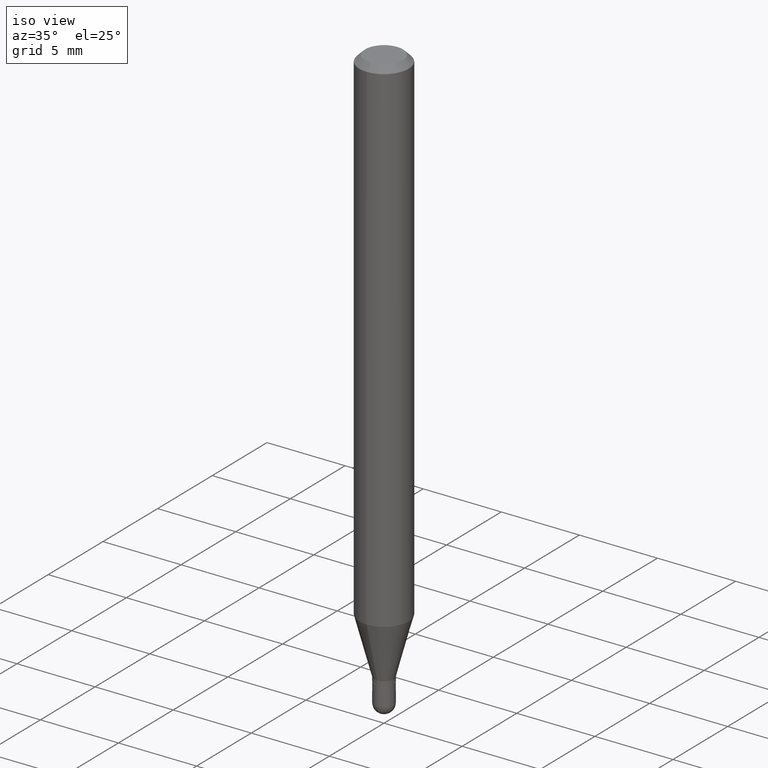
[diagram: clean part render]
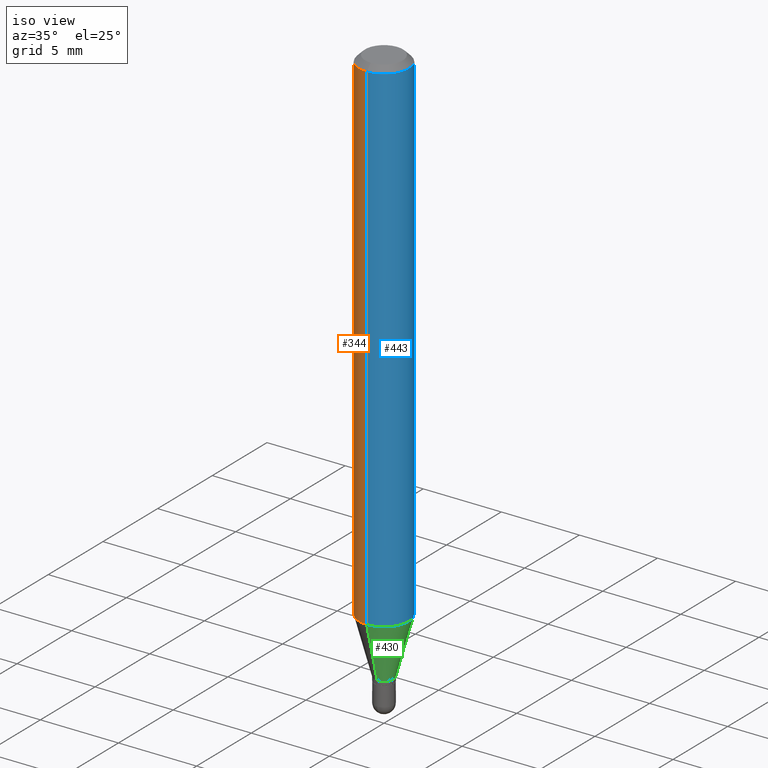
[diagram: same view with three faces highlighted in distinct colors, each labeled with its STEP entity id]
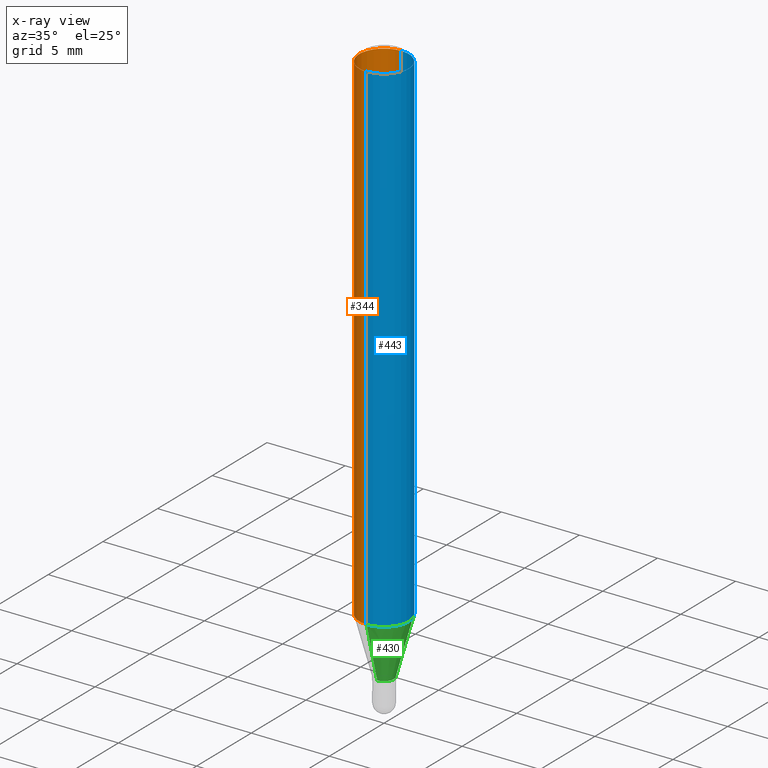
[diagram: x-ray of the same camera — body ghosted, the three highlighted faces saturated]
A machine part, iso view with three faces highlighted in distinct colors.
The next image is the same camera in x-ray (body ghosted, the three faces saturated) — at least one of them is partly hidden behind the body in this view.
Their STEP definitions:

[orange] entity #344 — the highlighted cylindrical surface (edge-blend (fillet) strip) has radius 1.5875 mm, axis along (-0, 0, 1).
#9 = CARTESIAN_POINT ( 'NONE',  ( -4.364351673553912750E-16, -0.06250000000000005551, -0.01499999999999979128 ) ) ;
#13 = CARTESIAN_POINT ( 'NONE',  ( 0.000000000000000000, 0.000000000000000000, 0.000000000000000000 ) ) ;
#24 = EDGE_LOOP ( 'NONE', ( #45, #44, #126, #42 ) ) ;
#27 = AXIS2_PLACEMENT_3D ( 'NONE', #13, #93, #394 ) ;
#33 = CARTESIAN_POINT ( 'NONE',  ( -4.364351673553916201E-16, -0.06250000000000000000, 2.182189338538161104E-16 ) ) ;
#42 = ORIENTED_EDGE ( 'NONE', *, *, #469, .F. ) ;
#44 = ORIENTED_EDGE ( 'NONE', *, *, #94, .T. ) ;
#45 = ORIENTED_EDGE ( 'NONE', *, *, #325, .F. ) ;
#49 = AXIS2_PLACEMENT_3D ( 'NONE', #340, #145, #421 ) ;
#53 = CYLINDRICAL_SURFACE ( 'NONE', #27, 0.06250000000000000000 ) ;
#61 = CARTESIAN_POINT ( 'NONE',  ( 3.668180581527025372E-31, -5.237254412491589410E-17, -0.01500000000000000812 ) ) ;
#85 = CARTESIAN_POINT ( 'NONE',  ( 4.440892098500625669E-16, 0.06250000000000000000, -2.182189338538161104E-16 ) ) ;
#86 = VERTEX_POINT ( 'NONE', #293 ) ;
#93 = DIRECTION ( 'NONE',  ( -2.445453721018015268E-29, 3.491502941661057766E-15, 1.000000000000000000 ) ) ;
#94 = EDGE_CURVE ( 'NONE', #398, #86, #124, .T. ) ;
#103 = VERTEX_POINT ( 'NONE', #426 ) ;
#110 = DIRECTION ( 'NONE',  ( -2.445453721018015548E-29, 3.491502941661058160E-15, 1.000000000000000000 ) ) ;
#113 = VECTOR ( 'NONE', #110, 39.37007874015748143 ) ;
#124 = CIRCLE ( 'NONE', #49, 0.06250000000000000000 ) ;
#126 = ORIENTED_EDGE ( 'NONE', *, *, #156, .T. ) ;
#145 = DIRECTION ( 'NONE',  ( -2.445453721018015268E-29, 3.491502941661057766E-15, 1.000000000000000000 ) ) ;
#156 = EDGE_CURVE ( 'NONE', #86, #359, #157, .T. ) ;
#157 = LINE ( 'NONE', #33, #113 ) ;
#238 = LINE ( 'NONE', #85, #428 ) ;
#240 = CARTESIAN_POINT ( 'NONE',  ( 4.440892098500935790E-16, 0.06249999999999553135, -1.274182069312383536 ) ) ;
#293 = CARTESIAN_POINT ( 'NONE',  ( -4.364351673553605587E-16, -0.06250000000000446865, -1.274182069312382870 ) ) ;
#317 = CIRCLE ( 'NONE', #379, 0.06250000000000000000 ) ;
#325 = EDGE_CURVE ( 'NONE', #398, #103, #238, .T. ) ;
#340 = CARTESIAN_POINT ( 'NONE',  ( 3.115953282654402493E-29, -4.448810443215959236E-15, -1.274182069312383314 ) ) ;
#344 = ADVANCED_FACE ( 'NONE', ( #361 ), #53, .T. ) ;
#359 = VERTEX_POINT ( 'NONE', #9 ) ;
#361 = FACE_OUTER_BOUND ( 'NONE', #24, .T. ) ;
#379 = AXIS2_PLACEMENT_3D ( 'NONE', #61, #454, #490 ) ;
#394 = DIRECTION ( 'NONE',  ( -6.982962677686265922E-15, -1.000000000000000000, 3.491502941661057766E-15 ) ) ;
#398 = VERTEX_POINT ( 'NONE', #240 ) ;
#421 = DIRECTION ( 'NONE',  ( -6.982962677686265922E-15, -1.000000000000000000, 4.370956789862821150E-15 ) ) ;
#426 = CARTESIAN_POINT ( 'NONE',  ( 4.440892098500939734E-16, 0.06249999999999995143, -0.01500000000000022669 ) ) ;
#428 = VECTOR ( 'NONE', #433, 39.37007874015748143 ) ;
#433 = DIRECTION ( 'NONE',  ( -2.445453721018015548E-29, 3.491502941661058160E-15, 1.000000000000000000 ) ) ;
#454 = DIRECTION ( 'NONE',  ( -2.445453721018015268E-29, 3.491502941661057766E-15, 1.000000000000000000 ) ) ;
#469 = EDGE_CURVE ( 'NONE', #103, #359, #317, .T. ) ;
#490 = DIRECTION ( 'NONE',  ( -6.982962677686265922E-15, -1.000000000000000000, 3.483106191921935554E-15 ) ) ;

[blue] entity #443 — the highlighted cylindrical surface (edge-blend (fillet) strip) has radius 1.5875 mm, axis along (-0, 0, 1).
#4 = ORIENTED_EDGE ( 'NONE', *, *, #117, .T. ) ;
#9 = CARTESIAN_POINT ( 'NONE',  ( -4.364351673553912750E-16, -0.06250000000000005551, -0.01499999999999979128 ) ) ;
#26 = CIRCLE ( 'NONE', #335, 0.06250000000000000000 ) ;
#33 = CARTESIAN_POINT ( 'NONE',  ( -4.364351673553916201E-16, -0.06250000000000000000, 2.182189338538161104E-16 ) ) ;
#63 = DIRECTION ( 'NONE',  ( -6.982962677686265922E-15, -1.000000000000000000, 3.491502941661057766E-15 ) ) ;
#85 = CARTESIAN_POINT ( 'NONE',  ( 4.440892098500625669E-16, 0.06250000000000000000, -2.182189338538161104E-16 ) ) ;
#86 = VERTEX_POINT ( 'NONE', #293 ) ;
#88 = CARTESIAN_POINT ( 'NONE',  ( 0.000000000000000000, 0.000000000000000000, 0.000000000000000000 ) ) ;
#96 = DIRECTION ( 'NONE',  ( -2.445453721018015268E-29, 3.491502941661057766E-15, 1.000000000000000000 ) ) ;
#103 = VERTEX_POINT ( 'NONE', #426 ) ;
#106 = DIRECTION ( 'NONE',  ( -6.982962677686265922E-15, -1.000000000000000000, 3.483106191921935554E-15 ) ) ;
#110 = DIRECTION ( 'NONE',  ( -2.445453721018015548E-29, 3.491502941661058160E-15, 1.000000000000000000 ) ) ;
#113 = VECTOR ( 'NONE', #110, 39.37007874015748143 ) ;
#117 = EDGE_CURVE ( 'NONE', #86, #398, #26, .T. ) ;
#136 = DIRECTION ( 'NONE',  ( -2.445453721018015268E-29, 3.491502941661057766E-15, 1.000000000000000000 ) ) ;
#140 = CIRCLE ( 'NONE', #230, 0.06250000000000000000 ) ;
#151 = DIRECTION ( 'NONE',  ( -6.982962677686265922E-15, -1.000000000000000000, 4.370956789862821150E-15 ) ) ;
#156 = EDGE_CURVE ( 'NONE', #86, #359, #157, .T. ) ;
#157 = LINE ( 'NONE', #33, #113 ) ;
#161 = ORIENTED_EDGE ( 'NONE', *, *, #447, .F. ) ;
#189 = DIRECTION ( 'NONE',  ( -2.445453721018015268E-29, 3.491502941661057766E-15, 1.000000000000000000 ) ) ;
#203 = FACE_OUTER_BOUND ( 'NONE', #400, .T. ) ;
#230 = AXIS2_PLACEMENT_3D ( 'NONE', #457, #96, #106 ) ;
#238 = LINE ( 'NONE', #85, #428 ) ;
#240 = CARTESIAN_POINT ( 'NONE',  ( 4.440892098500935790E-16, 0.06249999999999553135, -1.274182069312383536 ) ) ;
#293 = CARTESIAN_POINT ( 'NONE',  ( -4.364351673553605587E-16, -0.06250000000000446865, -1.274182069312382870 ) ) ;
#296 = ORIENTED_EDGE ( 'NONE', *, *, #325, .T. ) ;
#321 = CYLINDRICAL_SURFACE ( 'NONE', #415, 0.06250000000000000000 ) ;
#325 = EDGE_CURVE ( 'NONE', #398, #103, #238, .T. ) ;
#335 = AXIS2_PLACEMENT_3D ( 'NONE', #391, #189, #151 ) ;
#359 = VERTEX_POINT ( 'NONE', #9 ) ;
#391 = CARTESIAN_POINT ( 'NONE',  ( 3.115953282654402493E-29, -4.448810443215959236E-15, -1.274182069312383314 ) ) ;
#398 = VERTEX_POINT ( 'NONE', #240 ) ;
#400 = EDGE_LOOP ( 'NONE', ( #4, #296, #161, #445 ) ) ;
#415 = AXIS2_PLACEMENT_3D ( 'NONE', #88, #136, #63 ) ;
#426 = CARTESIAN_POINT ( 'NONE',  ( 4.440892098500939734E-16, 0.06249999999999995143, -0.01500000000000022669 ) ) ;
#428 = VECTOR ( 'NONE', #433, 39.37007874015748143 ) ;
#433 = DIRECTION ( 'NONE',  ( -2.445453721018015548E-29, 3.491502941661058160E-15, 1.000000000000000000 ) ) ;
#443 = ADVANCED_FACE ( 'NONE', ( #203 ), #321, .T. ) ;
#445 = ORIENTED_EDGE ( 'NONE', *, *, #156, .F. ) ;
#447 = EDGE_CURVE ( 'NONE', #359, #103, #140, .T. ) ;
#457 = CARTESIAN_POINT ( 'NONE',  ( 3.668180581527025372E-31, -5.237254412491589410E-17, -0.01500000000000000812 ) ) ;

[green] entity #430 — the highlighted conical surface has half-angle 15 deg.
#1 = CARTESIAN_POINT ( 'NONE',  ( 3.462762468961510445E-29, -4.943968165392057642E-15, -1.416000000000000147 ) ) ;
#26 = CIRCLE ( 'NONE', #335, 0.06250000000000000000 ) ;
#40 = VECTOR ( 'NONE', #69, 39.37007874015748854 ) ;
#46 = DIRECTION ( 'NONE',  ( -6.982962677686265133E-15, -1.000000000000000000, 0.000000000000000000 ) ) ;
#69 = DIRECTION ( 'NONE',  ( -1.807323732225332900E-15, -0.2588190451025185190, 0.9659258262890689783 ) ) ;
#80 = CIRCLE ( 'NONE', #488, 0.02449999999999992462 ) ;
#81 = VERTEX_POINT ( 'NONE', #502 ) ;
#82 = LINE ( 'NONE', #132, #237 ) ;
#86 = VERTEX_POINT ( 'NONE', #293 ) ;
#91 = AXIS2_PLACEMENT_3D ( 'NONE', #1, #159, #46 ) ;
#117 = EDGE_CURVE ( 'NONE', #86, #398, #26, .T. ) ;
#128 = ORIENTED_EDGE ( 'NONE', *, *, #357, .T. ) ;
#132 = CARTESIAN_POINT ( 'NONE',  ( 1.740829702612586212E-16, 0.02449999999999498065, -1.416000000000000147 ) ) ;
#151 = DIRECTION ( 'NONE',  ( -6.982962677686265922E-15, -1.000000000000000000, 4.370956789862821150E-15 ) ) ;
#158 = EDGE_LOOP ( 'NONE', ( #378, #128, #471, #313 ) ) ;
#159 = DIRECTION ( 'NONE',  ( -2.445453721018015268E-29, 3.491502941661057766E-15, 1.000000000000000000 ) ) ;
#189 = DIRECTION ( 'NONE',  ( -2.445453721018015268E-29, 3.491502941661057766E-15, 1.000000000000000000 ) ) ;
#194 = CARTESIAN_POINT ( 'NONE',  ( 3.462762468961510445E-29, -4.943968165392057642E-15, -1.416000000000000147 ) ) ;
#199 = FACE_OUTER_BOUND ( 'NONE', #158, .T. ) ;
#205 = EDGE_CURVE ( 'NONE', #403, #86, #468, .T. ) ;
#214 = CARTESIAN_POINT ( 'NONE',  ( -1.710825856032783344E-16, -0.02450000000000486858, -1.416000000000000147 ) ) ;
#216 = CONICAL_SURFACE ( 'NONE', #91, 0.02449999999999992462, 0.2617993877991506291 ) ;
#228 = DIRECTION ( 'NONE',  ( -6.982962677686265133E-15, -1.000000000000000000, 0.000000000000000000 ) ) ;
#237 = VECTOR ( 'NONE', #284, 39.37007874015748143 ) ;
#240 = CARTESIAN_POINT ( 'NONE',  ( 4.440892098500935790E-16, 0.06249999999999553135, -1.274182069312383536 ) ) ;
#247 = EDGE_CURVE ( 'NONE', #403, #81, #80, .T. ) ;
#269 = CARTESIAN_POINT ( 'NONE',  ( -1.710825856032783344E-16, -0.02450000000000486858, -1.416000000000000147 ) ) ;
#284 = DIRECTION ( 'NONE',  ( 1.839019923739602682E-15, 0.2588190451025252914, 0.9659258262890670910 ) ) ;
#293 = CARTESIAN_POINT ( 'NONE',  ( -4.364351673553605587E-16, -0.06250000000000446865, -1.274182069312382870 ) ) ;
#313 = ORIENTED_EDGE ( 'NONE', *, *, #205, .F. ) ;
#335 = AXIS2_PLACEMENT_3D ( 'NONE', #391, #189, #151 ) ;
#357 = EDGE_CURVE ( 'NONE', #81, #398, #82, .T. ) ;
#378 = ORIENTED_EDGE ( 'NONE', *, *, #247, .T. ) ;
#391 = CARTESIAN_POINT ( 'NONE',  ( 3.115953282654402493E-29, -4.448810443215959236E-15, -1.274182069312383314 ) ) ;
#398 = VERTEX_POINT ( 'NONE', #240 ) ;
#403 = VERTEX_POINT ( 'NONE', #214 ) ;
#427 = DIRECTION ( 'NONE',  ( -2.445453721018015268E-29, 3.491502941661057766E-15, 1.000000000000000000 ) ) ;
#430 = ADVANCED_FACE ( 'NONE', ( #199 ), #216, .T. ) ;
#468 = LINE ( 'NONE', #269, #40 ) ;
#471 = ORIENTED_EDGE ( 'NONE', *, *, #117, .F. ) ;
#488 = AXIS2_PLACEMENT_3D ( 'NONE', #194, #427, #228 ) ;
#502 = CARTESIAN_POINT ( 'NONE',  ( 3.090860900556762480E-16, 0.02449999999999498065, -1.416000000000000147 ) ) ;